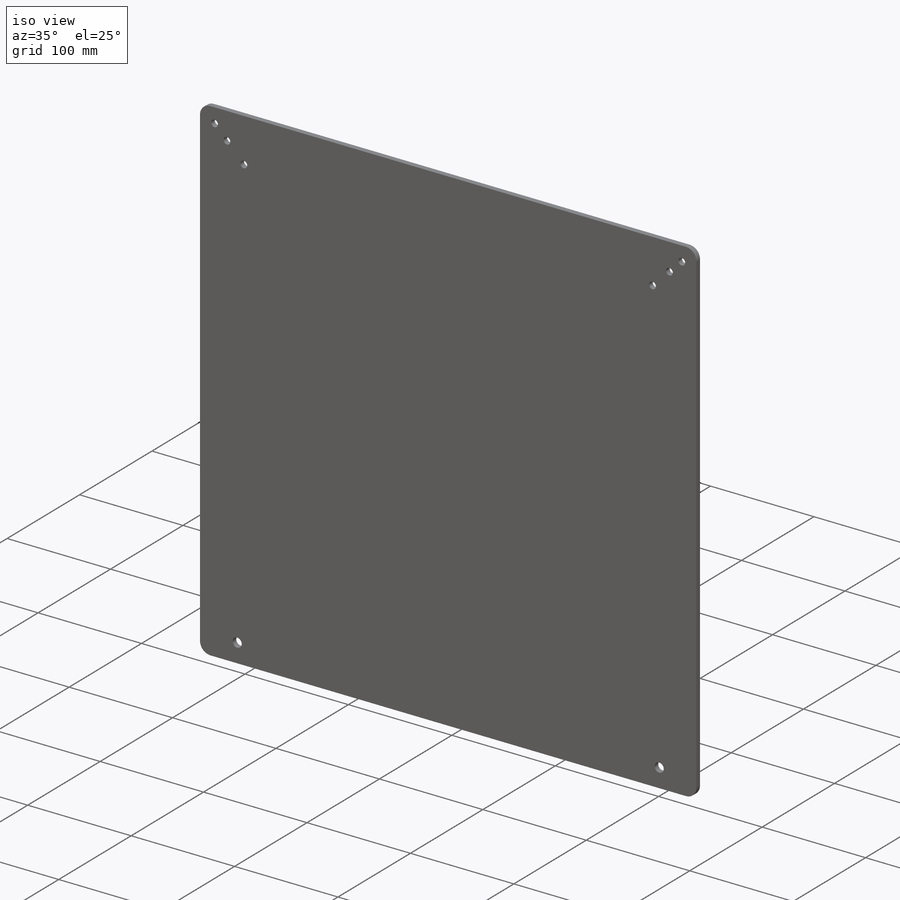
[diagram: iso view]
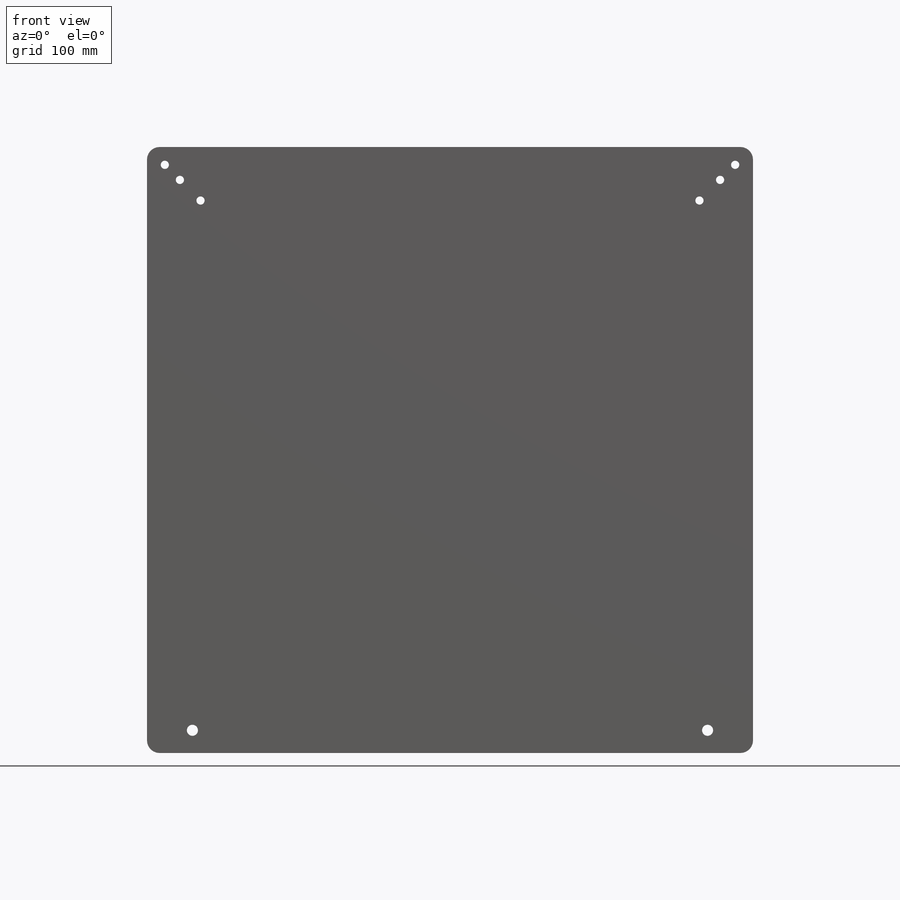
[diagram: front view]
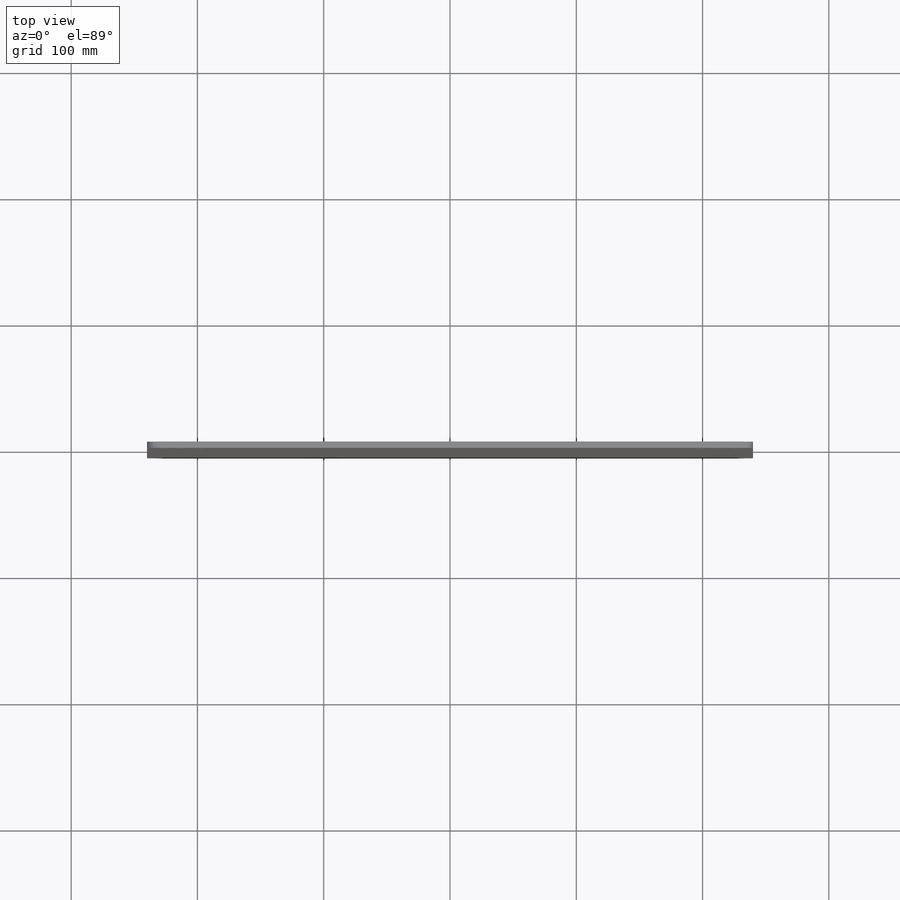
[diagram: top view]
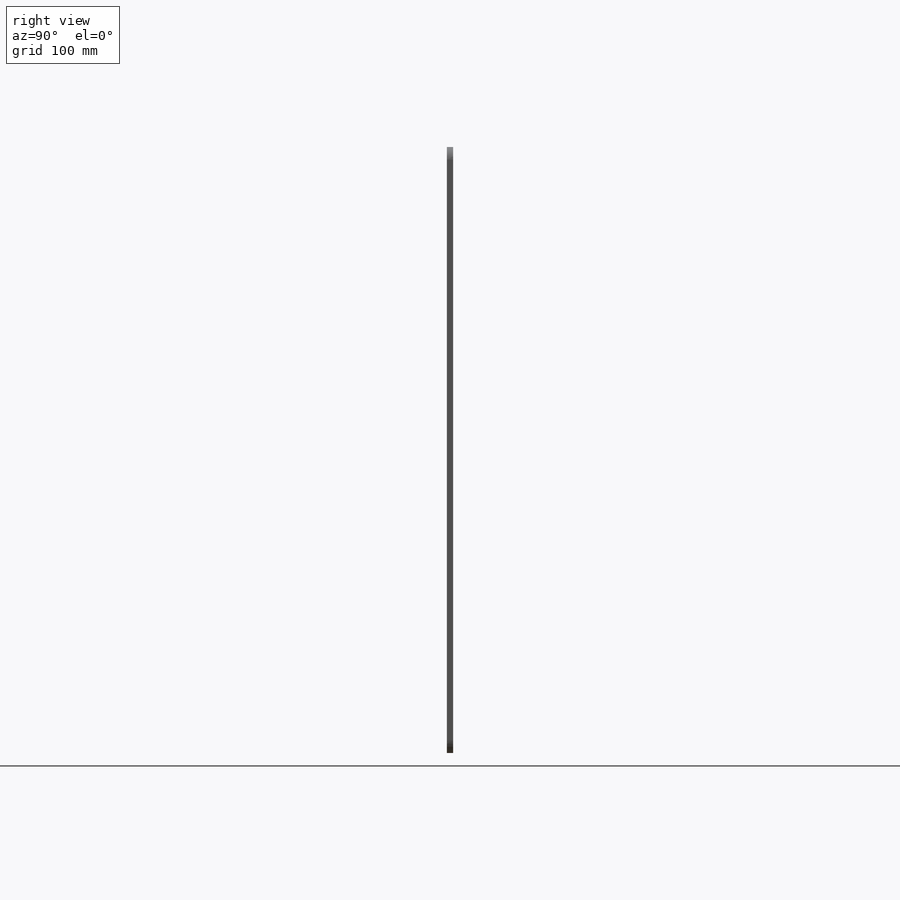
[diagram: right view]
SOLIDWORKS PART (.sldprt)
format: sldprt  version: not decoded by parser v0  size: 620,544 bytes
history: native  units: mm
features: sketch x3, material x1, extrude x1, cut_extrude x1, fillet x1, pattern_linear x1, pattern_circular x1 (+16 scaffold rows collapsed)
feature tree (25):
  scaffold x16  (default folders/planes/origin — collapsed)
  material  "Glass"
  sketch  "Sketch1"  dims[D1=30.0mm D2=50.0mm D3=30.0mm D4=480.0mm]
  extrude  "Boss-Extrude1"  Depth=5mm
  sketch  "Sketch2"  dims[c1.D1=6.5mm c1.D2=6.5mm c1.D6=6.5mm c1.D9=8.8mm c2.D2=5.0mm c2.D3=16.0mm c2.D4=5.0mm c2.D5=16.0mm c2.D6=5.0mm c2.D7=16.0mm c2.D8=~0.896006mm c2.D10=18.0mm c2.D11=36.0mm]
  cut_extrude  "Cut-Extrude1"  [1 undecoded]
  fillet  "Fillet1"  Radius=10mm
  sketch  "Sketch3"  dims[c1.D1=400.0mm c1.D2=400.0mm c1.D3=12.0mm c1.D4=5.0mm c1.D5=5.0mm c1.D6=10.0mm c2.D1=0.5mm c2.D5=0.5mm c2.D6=10.0mm c2.D7=0.25mm]
  pattern_linear  "LPattern1"  Count1=20 Count2=20 Spacing1=10mm Spacing2=10mm
  pattern_circular  "CirPattern1"  Count=4 Angle=360deg
decode coverage: 7 of 8 modeling features carry decoded parameters
note: ~ marks probable driven/reference dimensions
note: 1 parameter value undecoded
note: suppression state not decoded; provenance and decode notes live in map.json
